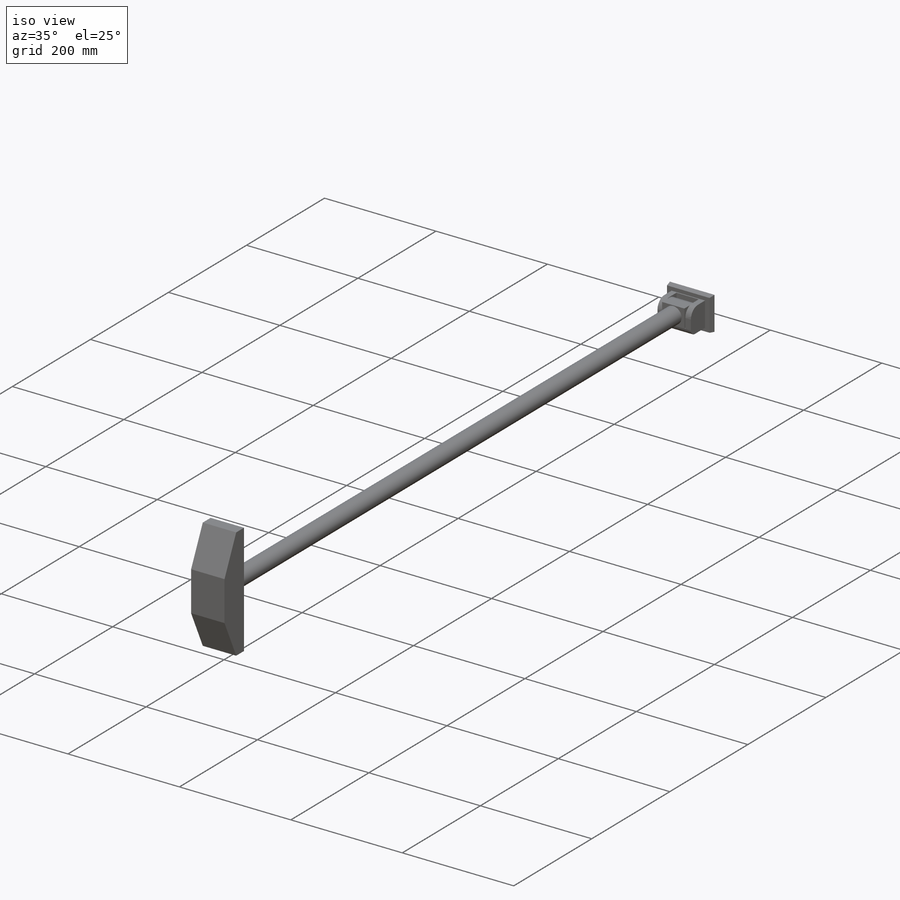
[diagram: iso view]
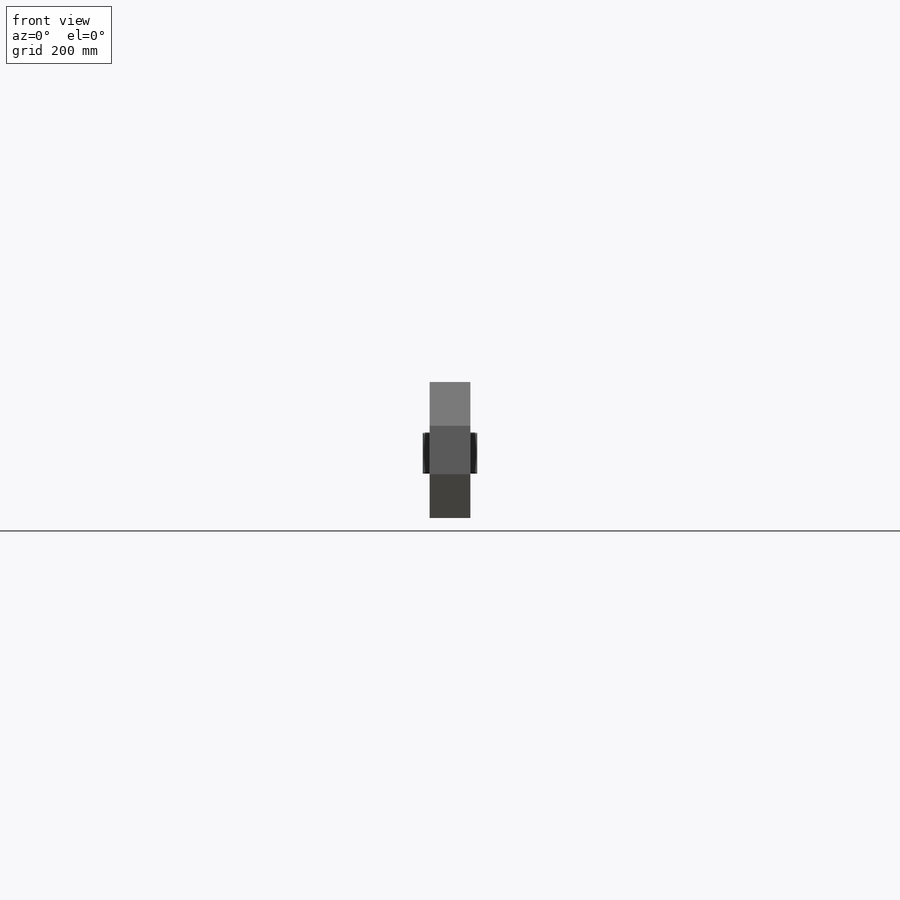
[diagram: front view]
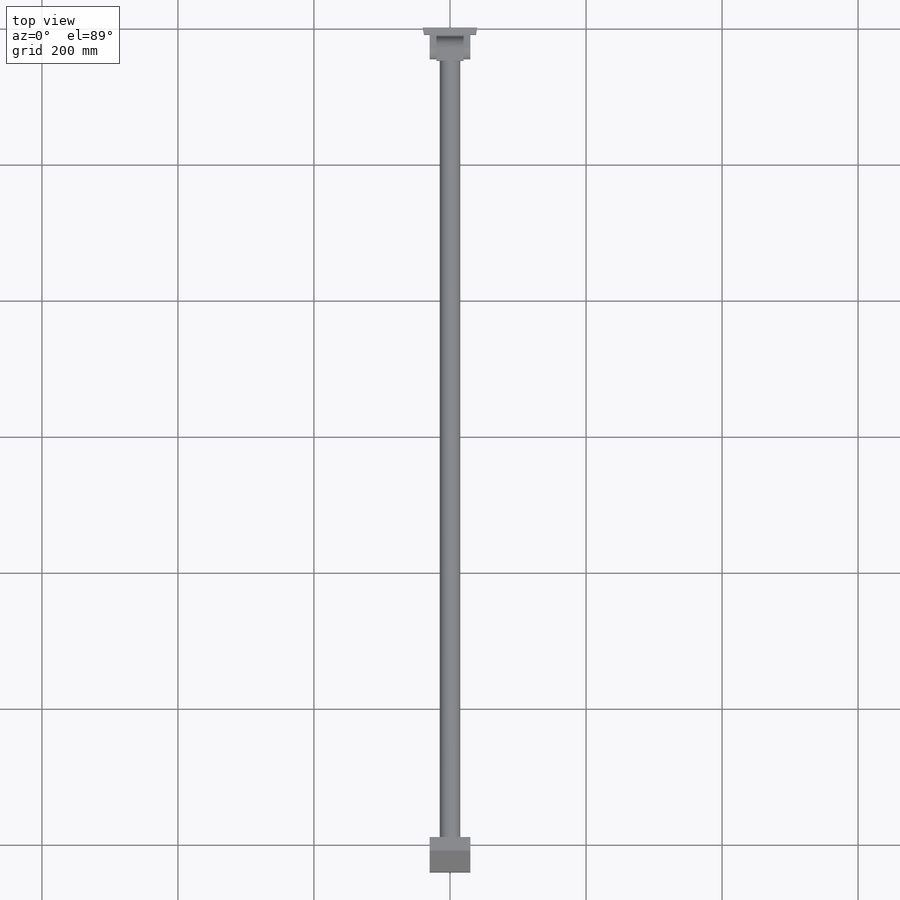
[diagram: top view]
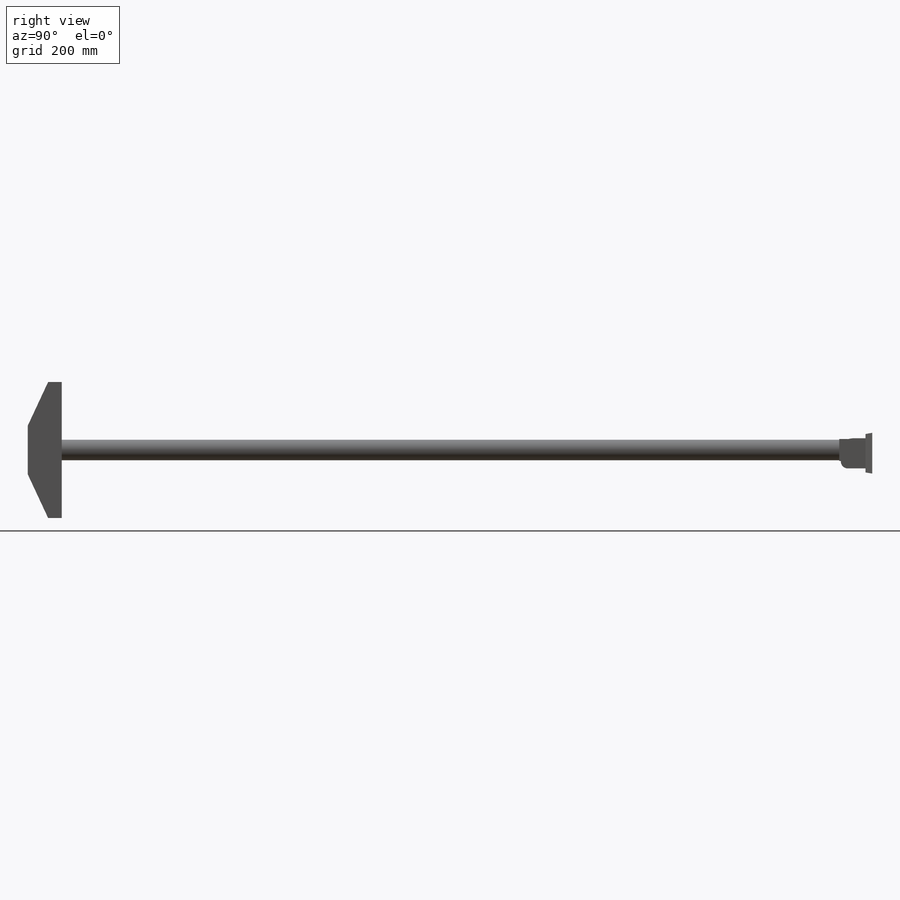
[diagram: right view]
SOLIDWORKS PART (.sldprt)
format: sldprt  version: not decoded by parser v0  size: 227,840 bytes
history: native  units: mm
features: sketch x6, extrude x5, material x1, cut_extrude x1, fillet x1, chamfer x1 (+12 scaffold rows collapsed)
feature tree (27):
  scaffold x12  (default folders/planes/origin — collapsed)
  material  "Material <not specified>"
  sketch  "Sketch1"  dims[D1=60.0mm D2=80.0mm]
  extrude  "Boss-Extrude1"  Depth=10mm
  sketch  "Sketch2"
  extrude  "Boss-Extrude2"  Depth=30mm
  sketch  "Sketch3"
  cut_extrude  "Cut-Extrude1"  Depth=20mm
  fillet  "Fillet1"  Radius=10mm
  sketch  "Sketch4"
  extrude  "Boss-Extrude3"  [1 undecoded]
  sketch  "Sketch5"  dims[D1=30.0mm]
  extrude  "Boss-Extrude4"  Depth=1143mm
  sketch  "Sketch6"  dims[D1=60.0mm D2=200.0mm]
  extrude  "Boss-Extrude5"  Depth=50mm
  chamfer  "Chamfer1"  Distance=30mm Angle=65deg
decode coverage: 10 of 14 modeling features carry decoded parameters
note: 1 parameter value undecoded
note: suppression state not decoded; provenance and decode notes live in map.json
